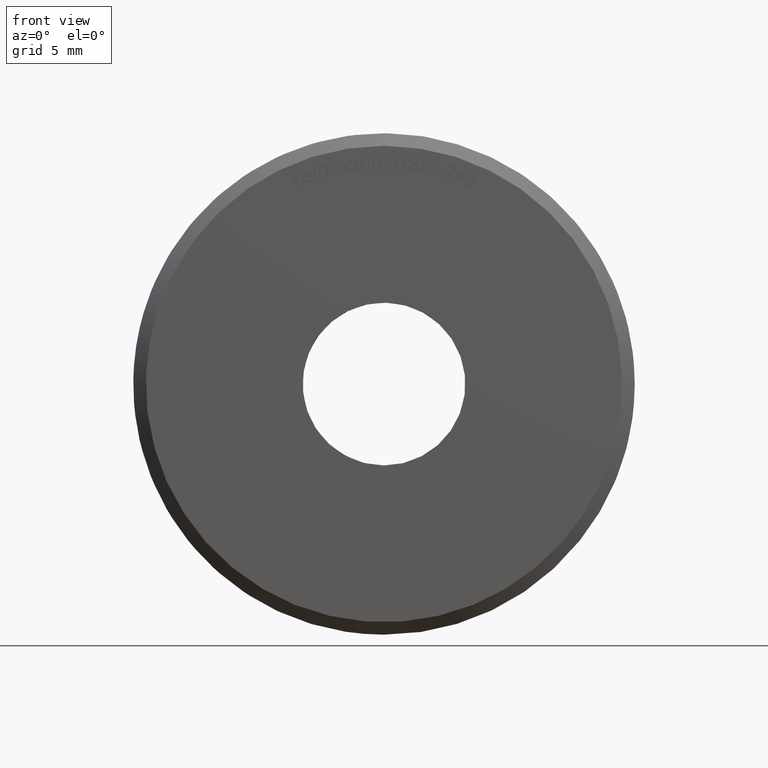
[diagram: clean part render]
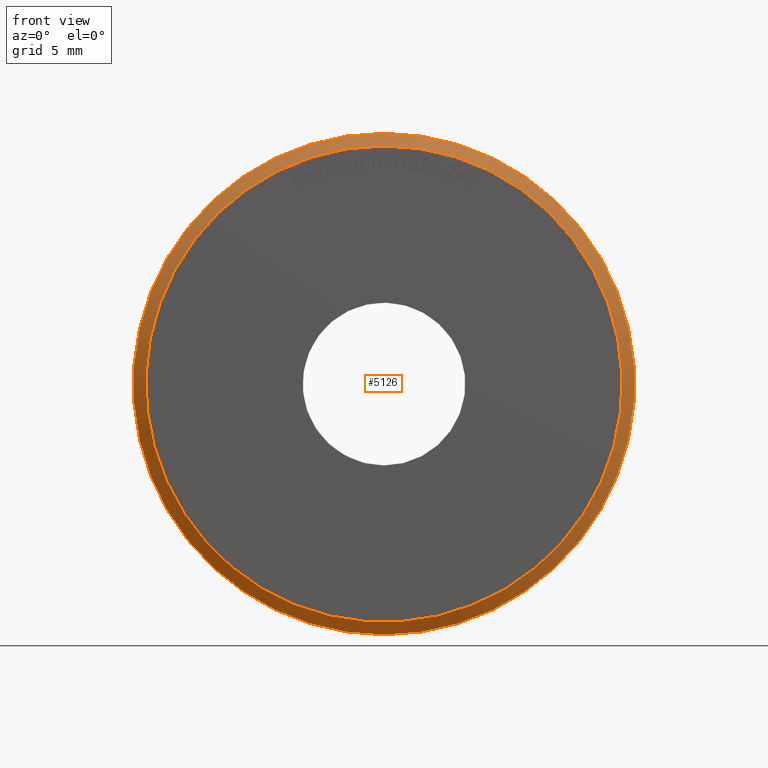
[diagram: same view with one face highlighted and labeled with its STEP entity id]
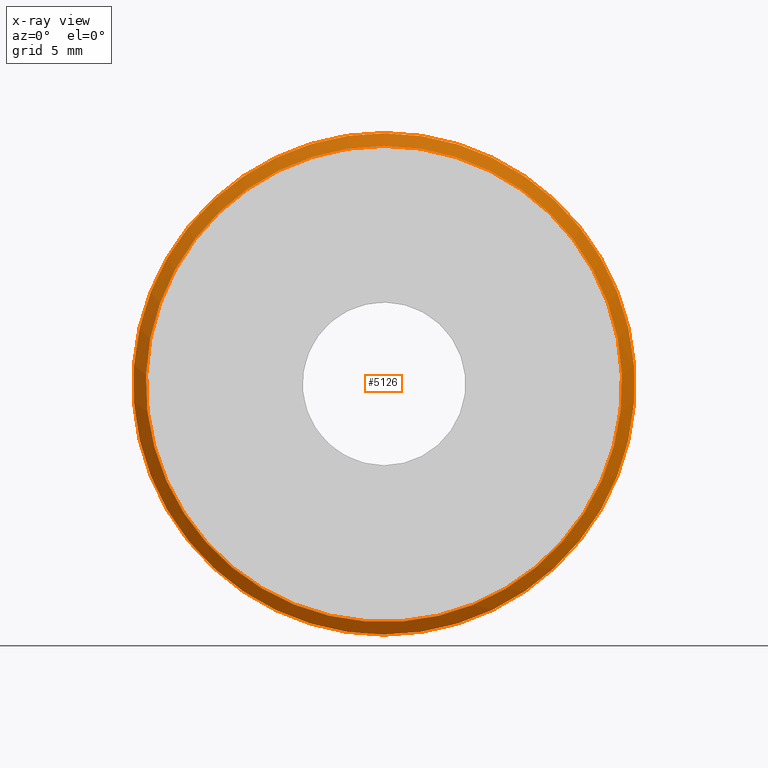
[diagram: x-ray of the same camera — body ghosted, the highlighted face saturated]
A machine part, front view. The second image highlights one B-rep face of the part: STEP entity #5126.
The next image is the same camera in x-ray: the body ghosted, the highlighted face saturated — about 0% of this face is hidden behind the body in this view.
In plain terms, the highlighted conical surface has half-angle 45 deg.
Its self-contained STEP definition (entity closure, byte-faithful):
#166 = DIRECTION ( 'NONE',  ( 0.000000000000000000, 0.000000000000000000, 1.000000000000000000 ) ) ;
#1835 = CIRCLE ( 'NONE', #11656, 10.00000000000000000 ) ;
#2017 = CARTESIAN_POINT ( 'NONE',  ( 0.000000000000000000, 0.5000000000000022204, 0.000000000000000000 ) ) ;
#2975 = CONICAL_SURFACE ( 'NONE', #4836, 10.00000000000000000, 0.7853981633974517207 ) ;
#3392 = EDGE_LOOP ( 'NONE', ( #5279 ) ) ;
#3468 = AXIS2_PLACEMENT_3D ( 'NONE', #3706, #12562, #8467 ) ;
#3706 = CARTESIAN_POINT ( 'NONE',  ( 0.000000000000000000, 0.000000000000000000, 0.000000000000000000 ) ) ;
#4038 = FACE_BOUND ( 'NONE', #3392, .T. ) ;
#4836 = AXIS2_PLACEMENT_3D ( 'NONE', #5994, #10960, #166 ) ;
#5126 = ADVANCED_FACE ( 'NONE', ( #4038, #6949 ), #2975, .T. ) ;
#5279 = ORIENTED_EDGE ( 'NONE', *, *, #10301, .F. ) ;
#5450 = CARTESIAN_POINT ( 'NONE',  ( 0.000000000000000000, 0.000000000000000000, 9.499999999999994671 ) ) ;
#5932 = VERTEX_POINT ( 'NONE', #5450 ) ;
#5994 = CARTESIAN_POINT ( 'NONE',  ( 0.000000000000000000, 0.5000000000000022204, 0.000000000000000000 ) ) ;
#6230 = VERTEX_POINT ( 'NONE', #6524 ) ;
#6524 = CARTESIAN_POINT ( 'NONE',  ( 0.000000000000000000, 0.5000000000000022204, 10.00000000000000000 ) ) ;
#6785 = DIRECTION ( 'NONE',  ( 0.000000000000000000, 0.000000000000000000, 1.000000000000000000 ) ) ;
#6949 = FACE_OUTER_BOUND ( 'NONE', #7008, .T. ) ;
#7008 = EDGE_LOOP ( 'NONE', ( #11337 ) ) ;
#7829 = CIRCLE ( 'NONE', #3468, 9.499999999999994671 ) ;
#8074 = EDGE_CURVE ( 'NONE', #6230, #6230, #1835, .T. ) ;
#8467 = DIRECTION ( 'NONE',  ( 0.000000000000000000, 0.000000000000000000, 1.000000000000000000 ) ) ;
#10301 = EDGE_CURVE ( 'NONE', #5932, #5932, #7829, .T. ) ;
#10899 = DIRECTION ( 'NONE',  ( -0.000000000000000000, 1.000000000000000000, -0.000000000000000000 ) ) ;
#10960 = DIRECTION ( 'NONE',  ( -0.000000000000000000, 1.000000000000000000, -0.000000000000000000 ) ) ;
#11337 = ORIENTED_EDGE ( 'NONE', *, *, #8074, .F. ) ;
#11656 = AXIS2_PLACEMENT_3D ( 'NONE', #2017, #10899, #6785 ) ;
#12562 = DIRECTION ( 'NONE',  ( -0.000000000000000000, -1.000000000000000000, -0.000000000000000000 ) ) ;